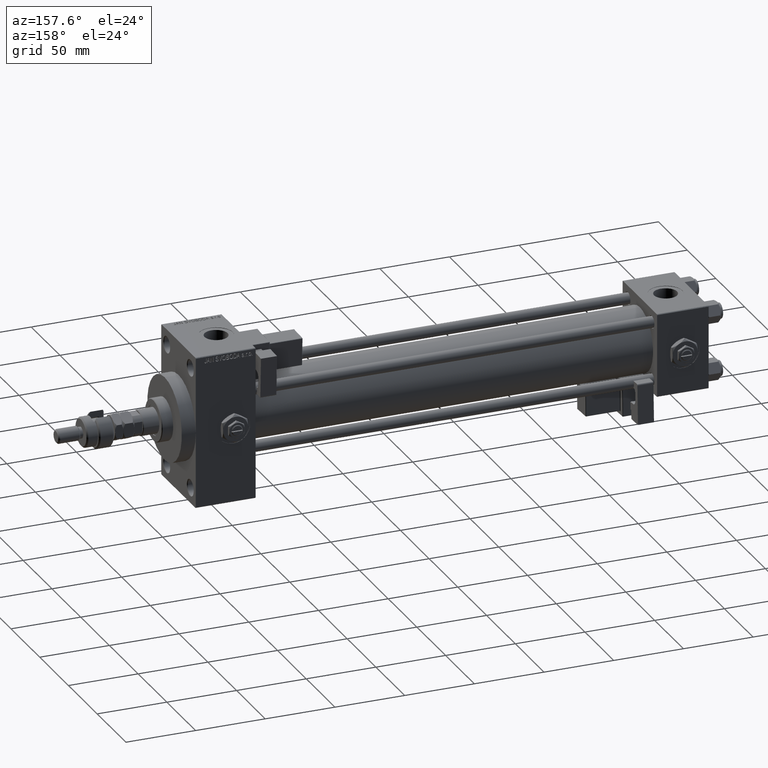
[diagram: clean part render]
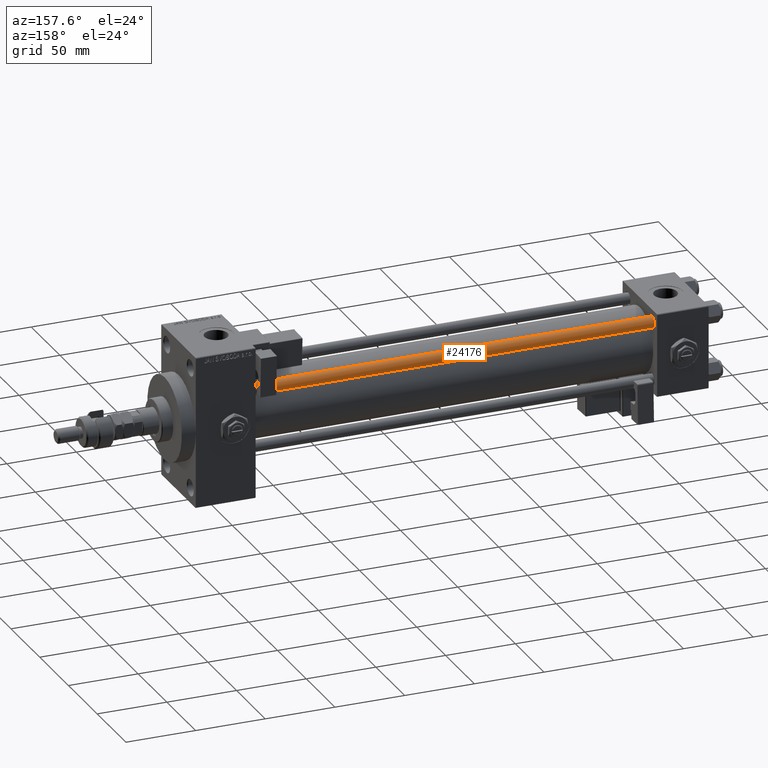
[diagram: same view with one face highlighted and labeled with its STEP entity id]
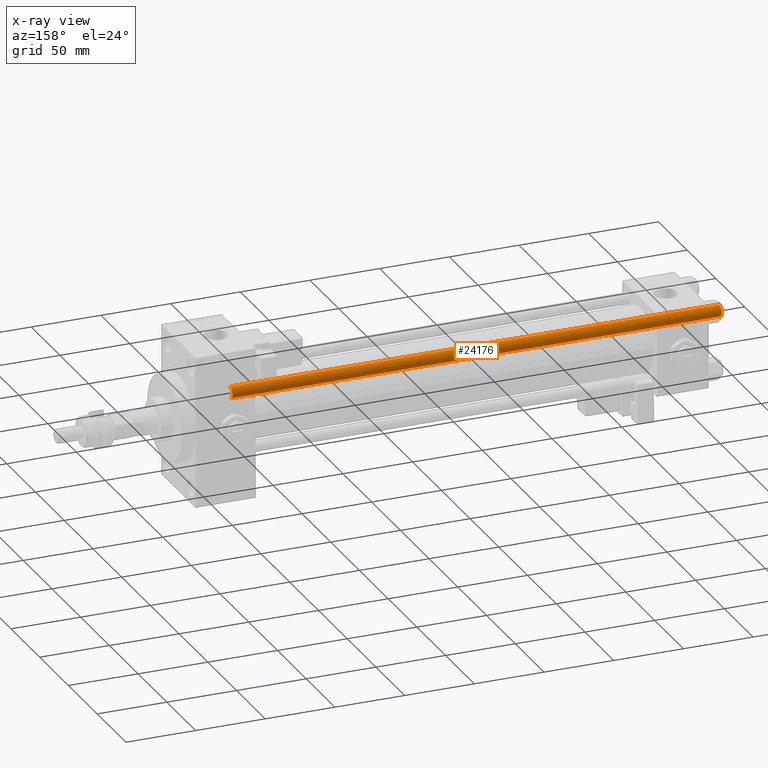
[diagram: x-ray of the same camera — body ghosted, the highlighted face saturated]
A machine part, auxiliary view. The second image highlights one B-rep face of the part: STEP entity #24176.
The next image is the same camera in x-ray: the body ghosted, the highlighted face saturated — about 0% of this face is hidden behind the body in this view.
In plain terms, the highlighted cylindrical surface (edge-blend (fillet) strip) has radius 4 mm, axis along (-1, -0, 0).
Its self-contained STEP definition (entity closure, byte-faithful):
#497 = ORIENTED_EDGE ( 'NONE', *, *, #20140, .T. ) ;
#872 = LINE ( 'NONE', #31061, #10813 ) ;
#1042 = VERTEX_POINT ( 'NONE', #9571 ) ;
#2445 = LINE ( 'NONE', #15883, #35041 ) ;
#5604 = AXIS2_PLACEMENT_3D ( 'NONE', #28168, #7574, #19930 ) ;
#6022 = DIRECTION ( 'NONE',  ( -0.000000000000000000, -0.000000000000000000, 1.000000000000000000 ) ) ;
#6306 = VERTEX_POINT ( 'NONE', #47964 ) ;
#7574 = DIRECTION ( 'NONE',  ( 0.000000000000000000, 0.000000000000000000, -1.000000000000000000 ) ) ;
#7723 = FACE_OUTER_BOUND ( 'NONE', #35148, .T. ) ;
#9571 = CARTESIAN_POINT ( 'NONE',  ( 4.000000000000000000, 4.898587196589412829E-16, 0.5000000000000004441 ) ) ;
#10813 = VECTOR ( 'NONE', #42877, 1000.000000000000000 ) ;
#11925 = ORIENTED_EDGE ( 'NONE', *, *, #19466, .F. ) ;
#12641 = DIRECTION ( 'NONE',  ( -0.000000000000000000, -0.000000000000000000, -1.000000000000000000 ) ) ;
#15883 = CARTESIAN_POINT ( 'NONE',  ( 4.000000000000000000, 4.898587196589412829E-16, 352.0000000000000000 ) ) ;
#16224 = DIRECTION ( 'NONE',  ( -1.000000000000000000, 0.000000000000000000, 0.000000000000000000 ) ) ;
#17586 = ORIENTED_EDGE ( 'NONE', *, *, #48184, .T. ) ;
#19466 = EDGE_CURVE ( 'NONE', #48671, #47026, #872, .T. ) ;
#19930 = DIRECTION ( 'NONE',  ( 1.000000000000000000, 0.000000000000000000, 0.000000000000000000 ) ) ;
#20140 = EDGE_CURVE ( 'NONE', #48671, #6306, #38059, .T. ) ;
#21831 = CARTESIAN_POINT ( 'NONE',  ( -4.000000000000000000, 0.000000000000000000, 351.5000000000000000 ) ) ;
#24176 = ADVANCED_FACE ( 'NONE', ( #7723 ), #41220, .T. ) ;
#25275 = CARTESIAN_POINT ( 'NONE',  ( 0.000000000000000000, 0.000000000000000000, 352.0000000000000000 ) ) ;
#26899 = CARTESIAN_POINT ( 'NONE',  ( 0.000000000000000000, 0.000000000000000000, 0.5000000000000004441 ) ) ;
#28168 = CARTESIAN_POINT ( 'NONE',  ( 0.000000000000000000, 0.000000000000000000, 351.5000000000000000 ) ) ;
#31061 = CARTESIAN_POINT ( 'NONE',  ( -4.000000000000000000, 0.000000000000000000, 352.0000000000000000 ) ) ;
#35041 = VECTOR ( 'NONE', #49386, 1000.000000000000000 ) ;
#35148 = EDGE_LOOP ( 'NONE', ( #497, #50450, #17586, #11925 ) ) ;
#36819 = CARTESIAN_POINT ( 'NONE',  ( -4.000000000000000000, 0.000000000000000000, 0.5000000000000004441 ) ) ;
#38059 = CIRCLE ( 'NONE', #5604, 4.000000000000000000 ) ;
#41198 = CIRCLE ( 'NONE', #46446, 4.000000000000000000 ) ;
#41220 = CYLINDRICAL_SURFACE ( 'NONE', #50374, 4.000000000000000000 ) ;
#42877 = DIRECTION ( 'NONE',  ( -0.000000000000000000, -0.000000000000000000, -1.000000000000000000 ) ) ;
#43629 = DIRECTION ( 'NONE',  ( 1.000000000000000000, 0.000000000000000000, 0.000000000000000000 ) ) ;
#46446 = AXIS2_PLACEMENT_3D ( 'NONE', #26899, #6022, #43629 ) ;
#47026 = VERTEX_POINT ( 'NONE', #36819 ) ;
#47964 = CARTESIAN_POINT ( 'NONE',  ( 4.000000000000000000, 4.898587196589412829E-16, 351.5000000000000000 ) ) ;
#48184 = EDGE_CURVE ( 'NONE', #1042, #47026, #41198, .T. ) ;
#48303 = EDGE_CURVE ( 'NONE', #6306, #1042, #2445, .T. ) ;
#48671 = VERTEX_POINT ( 'NONE', #21831 ) ;
#49386 = DIRECTION ( 'NONE',  ( -0.000000000000000000, -0.000000000000000000, -1.000000000000000000 ) ) ;
#50374 = AXIS2_PLACEMENT_3D ( 'NONE', #25275, #12641, #16224 ) ;
#50450 = ORIENTED_EDGE ( 'NONE', *, *, #48303, .T. ) ;